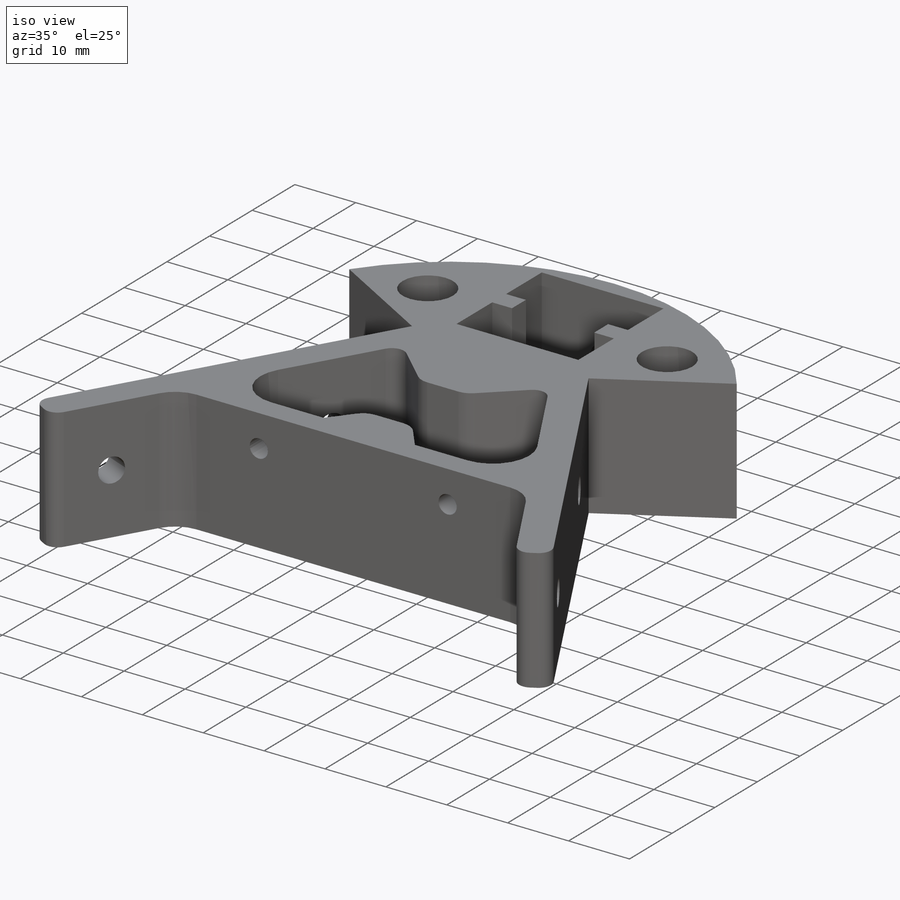
[diagram: iso view]
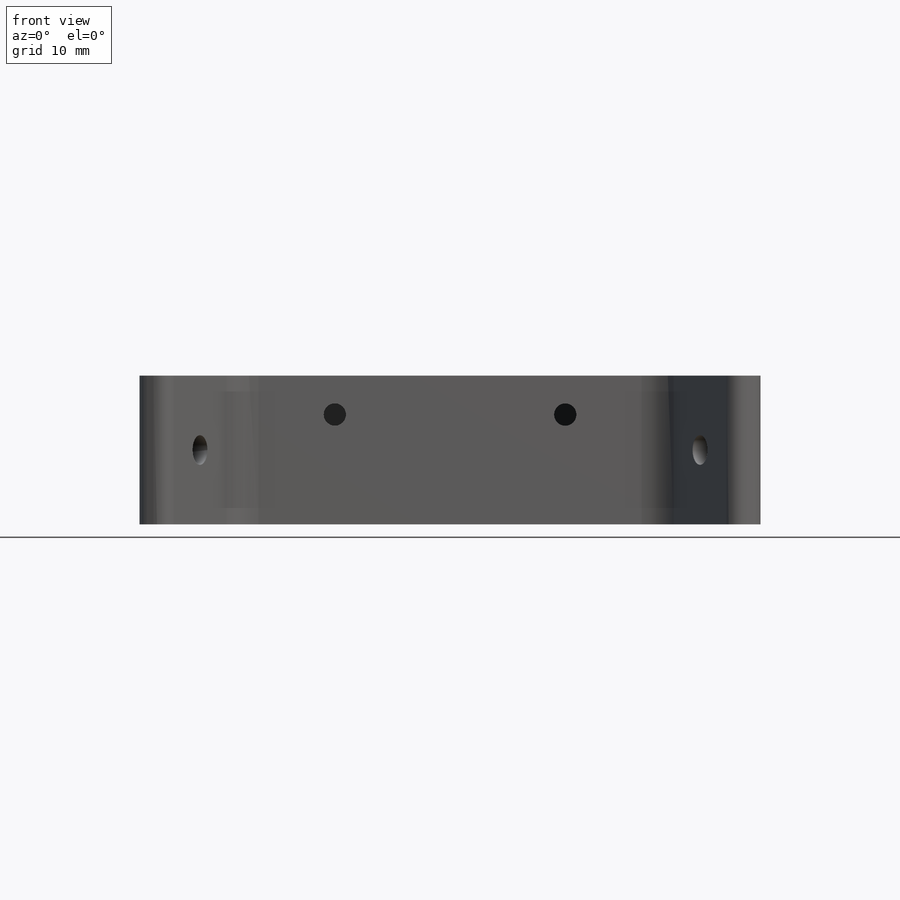
[diagram: front view]
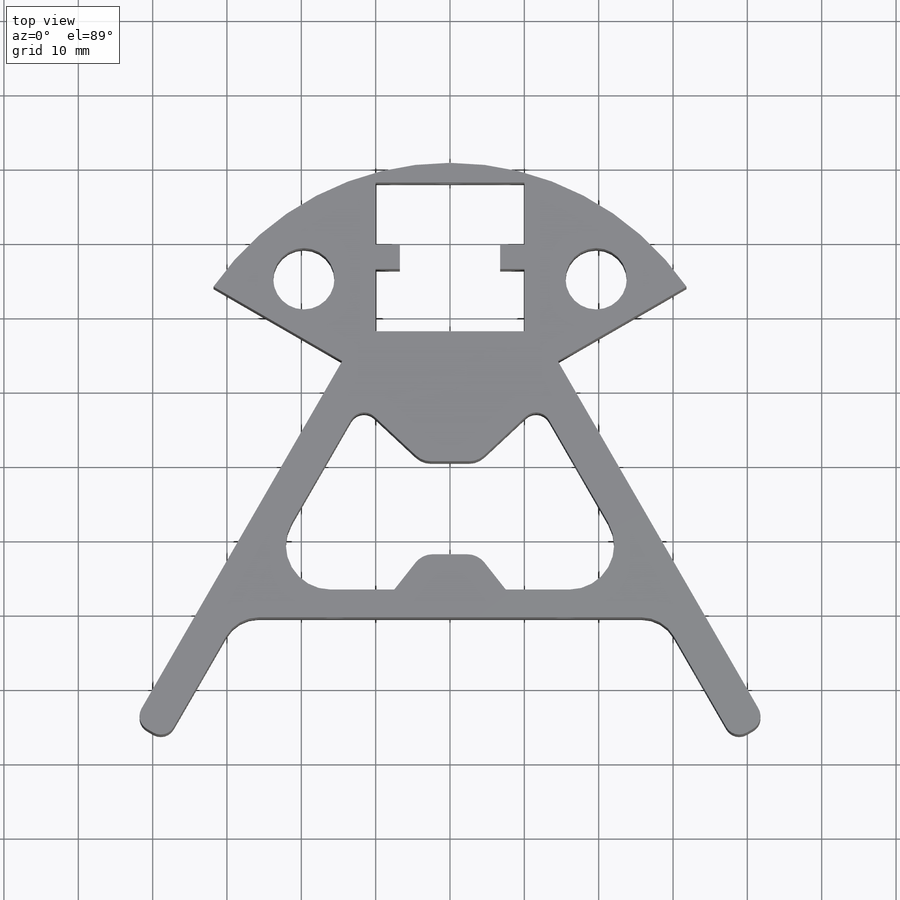
[diagram: top view]
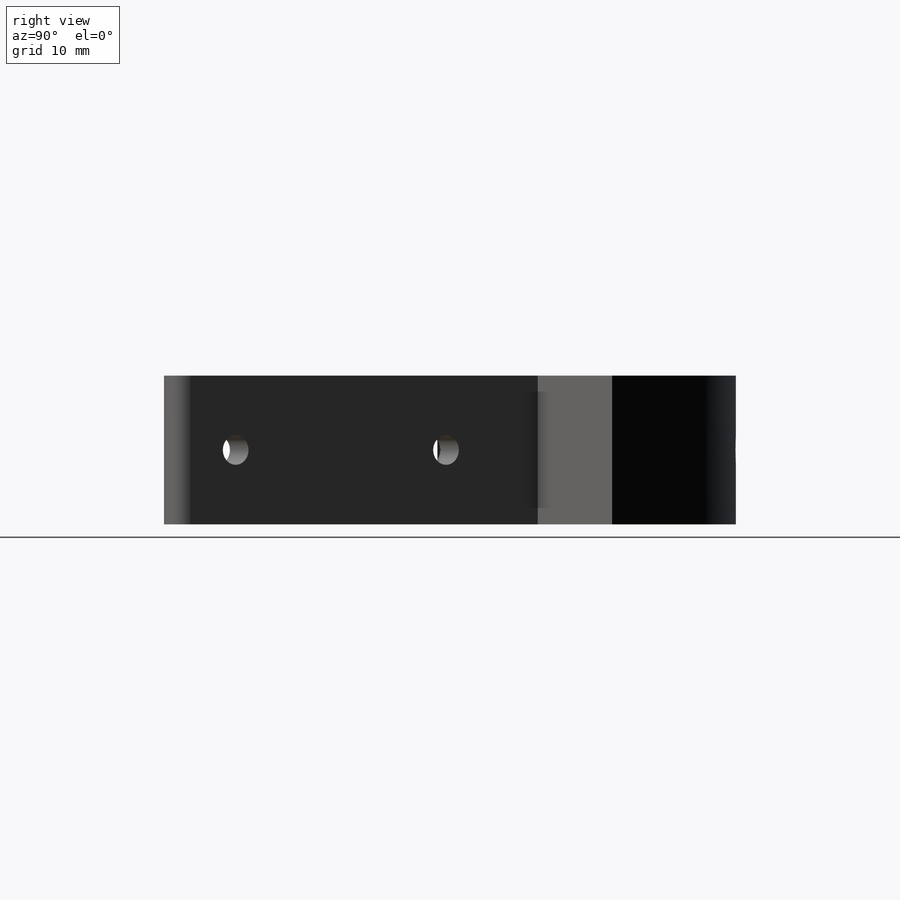
[diagram: right view]
SOLIDWORKS PART (.sldprt)
format: sldprt  version: not decoded by parser v0  size: 531,968 bytes
history: native  units: mm
features: sketch x16, fillet x7, hole x7, material x1, extrude x1 (+13 scaffold rows collapsed)
feature tree (45):
  scaffold x13  (default folders/planes/origin — collapsed)
  material  "Material <not specified>"
  sketch  "Sketch1"  dims[c1.D7=~38.716309mm c1.D5=8.25mm c1.D21=8.25mm c1.D23=8.25mm c1.D25=8.25mm c2.D25=8.25mm c2.D26=8.25mm c2.D1=85.0mm c2.D2=5.0mm c2.D3=5.0mm c2.D4=14.0mm c2.D5=55.0mm c2.D6=56.0mm c2.D8=20.0mm c2.D9=20.0mm c2.D10=5.0mm c2.D11=3.75mm c2.D12=3.75mm c2.D13=5.0mm c3.D12=15.0mm c3.D14=8.5mm c3.D15=7.5mm c3.D16=25.0mm c3.D17=12.5mm c3.D18=7.5mm c3.D19=20.0mm c3.D20=6.25mm c4.D18=38.5mm c4.D20=21.82mm c4.D21=~6.97841mm c4.D5=~21.821016mm c5.D21=7.0mm c5.D22=~6.278684mm c6.D22=90.0deg c7.D22=10.0mm c7.D23=7.0mm c7.D18=~36.057234mm c7.D24=16.5mm c7.D25=7.0mm c8.D24=3.25mm c8.D25=8.375mm c8.D26=~6.863498mm c8.D20=8.375mm c9.D25=~9.659746mm c9.D26=~9.660762mm c9.D1=~26.717588deg]
  extrude  "Boss-Extrude1"  Depth=20mm
  fillet  "Fillet2"  Radius=5mm
  fillet  "Fillet3"  Radius=5mm
  fillet  "Fillet4"  Radius=6mm
  fillet  "Fillet5"  Radius=6mm
  fillet  "Fillet6"  Radius=2mm
  fillet  "Fillet7"  Radius=3mm
  fillet  "Fillet10"  Radius=2mm
  hole  "Upper Vertex Holes"  Diameter=3mm Depth=30mm
  sketch  "Sketch4"
  sketch  "Sketch5"  dims[hole-wizard template sketch: 47 standard entries collapsed; hole parameters kept: c15.Hole Depth=30.0mm c15.D3=~14.816244mm c15.Drill Angle=118.0deg]
  hole  "#8 (0.199) Diameter Hole2"  Diameter=4mm Depth=41.945563mm
  sketch  "Sketch7"
  sketch  "Sketch6"  dims[hole-wizard template sketch: 60 standard entries collapsed; hole parameters kept: c18.Thru Hole Depth=~41.945563mm]
  hole  "#8 (0.199) Diameter Hole3"  Diameter=4mm Depth=41.945563mm
  sketch  "Sketch9"
  sketch  "Sketch8"  dims[hole-wizard template sketch: 60 standard entries collapsed; hole parameters kept: c18.Thru Hole Depth=~41.945563mm]
  hole  "#8 (0.199) Diameter Hole5"  Diameter=4mm Depth=41.945563mm
  sketch  "Sketch13"
  sketch  "Sketch12"  dims[hole-wizard template sketch: 60 standard entries collapsed; hole parameters kept: c18.Thru Hole Depth=~41.945563mm]
  hole  "#8 (0.199) Diameter Hole6"  Diameter=4mm Depth=41.945563mm
  sketch  "Sketch17"
  sketch  "Sketch16"  dims[hole-wizard template sketch: 60 standard entries collapsed; hole parameters kept: c18.Thru Hole Depth=~41.945563mm]
  hole  "#8 (0.199) Diameter Hole7"  Diameter=4mm Depth=30mm
  sketch  "Sketch19"
  sketch  "Sketch18"  dims[hole-wizard template sketch: 47 standard entries collapsed; hole parameters kept: c15.Hole Depth=30.0mm c15.D3=~14.816244mm c15.Drill Angle=118.0deg]
  sketch  "Sketch21"  dims[c1.D1=~1.321967mm c1.D3=3.0mm c1.D4=3.0mm c1.D5=~4.180068mm c2.D1=31.0mm c2.D2=5.25mm c2.D3=10.255mm c2.D4=~10.258684mm c3.D3=~10.256884mm]
  hole  "#8 (0.199) Diameter Hole8"  Diameter=3mm Depth=4mm
  sketch  "Sketch23"
  sketch  "Sketch22"  dims[hole-wizard template sketch: 47 standard entries collapsed; hole parameters kept: c15.Hole Depth=4.0mm c15.D3=~14.816244mm c15.Drill Angle=118.0deg]
decode coverage: 24 of 31 modeling features carry decoded parameters
note: ~ marks probable driven/reference dimensions
summary: Diameter pulled from absorbed wizard sketch
note: suppression state not decoded; provenance and decode notes live in map.json
